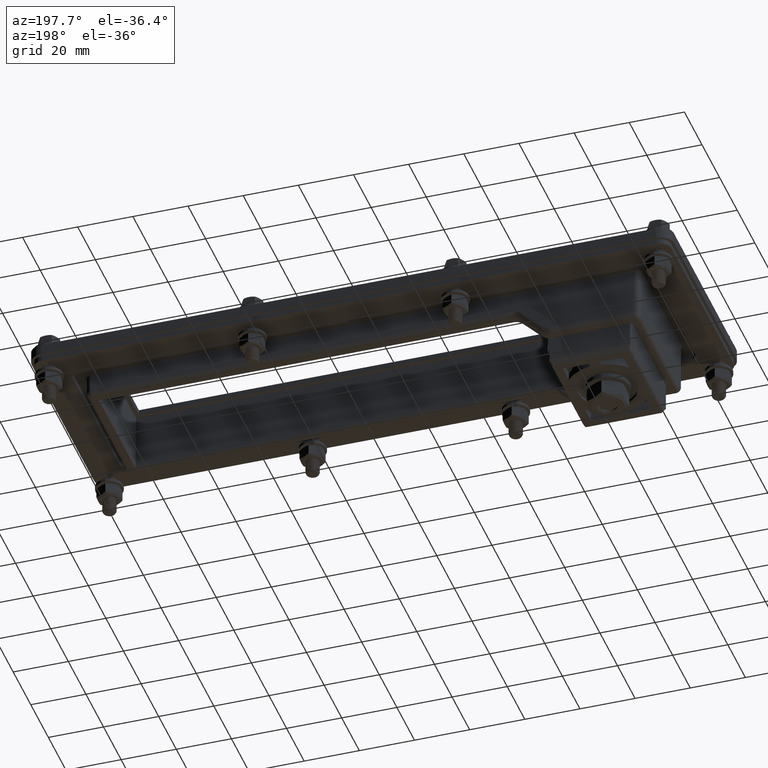
[diagram: clean part render]
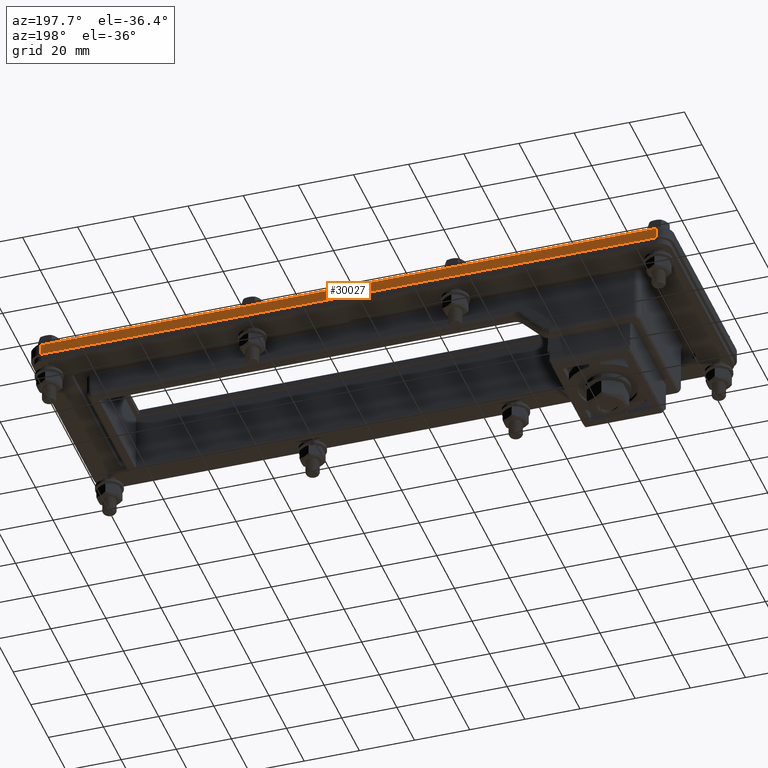
[diagram: same view with one face highlighted and labeled with its STEP entity id]
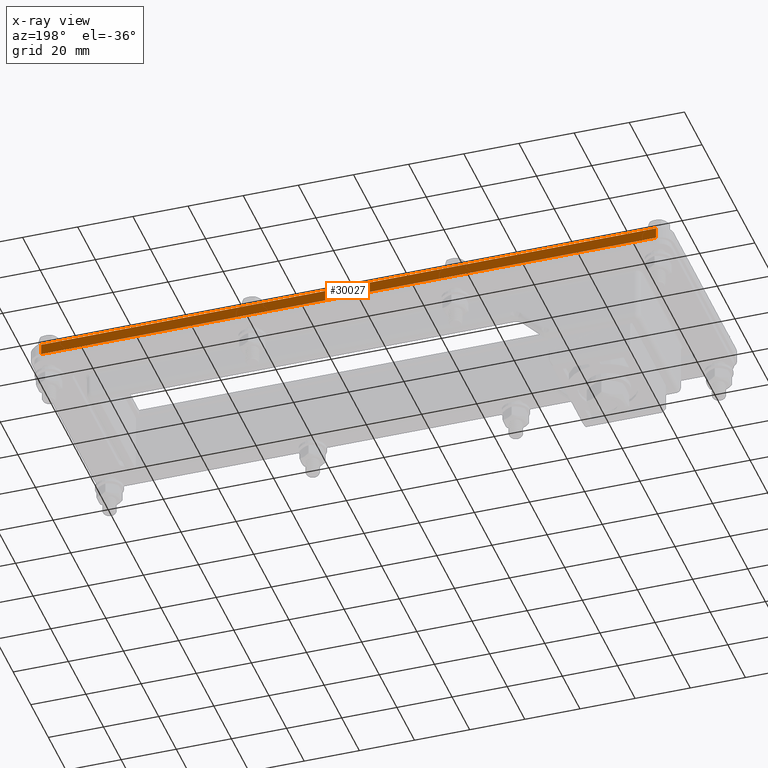
[diagram: x-ray of the same camera — body ghosted, the highlighted face saturated]
A machine part, auxiliary view. The second image highlights one B-rep face of the part: STEP entity #30027.
The next image is the same camera in x-ray: the body ghosted, the highlighted face saturated — about 0% of this face is hidden behind the body in this view.
In plain terms, the highlighted planar face has unit normal (0, 1, 0).
Its self-contained STEP definition (entity closure, byte-faithful):
#8278=CARTESIAN_POINT('',(-111.49999999999994,40.250000000000121,9.500000000000002));
#8279=VERTEX_POINT('',#8278);
#8287=CARTESIAN_POINT('',(111.50000000000017,40.250000000000142,9.500000000000002));
#8288=VERTEX_POINT('',#8287);
#8289=CARTESIAN_POINT('',(111.50000000000017,40.250000000000142,9.500000000000002));
#8290=DIRECTION('',(-1.0,0.0,0.0));
#8291=VECTOR('',#8290,223.00000000000011);
#8292=LINE('',#8289,#8291);
#8293=EDGE_CURVE('',#8288,#8279,#8292,.T.);
#14776=CARTESIAN_POINT('',(111.50000000000017,40.250000000000142,13.5));
#14777=VERTEX_POINT('',#14776);
#14785=CARTESIAN_POINT('',(-111.49999999999994,40.250000000000121,13.5));
#14786=VERTEX_POINT('',#14785);
#14787=CARTESIAN_POINT('',(-111.49999999999994,40.250000000000114,13.5));
#14788=DIRECTION('',(1.0,0.0,0.0));
#14789=VECTOR('',#14788,223.00000000000011);
#14790=LINE('',#14787,#14789);
#14791=EDGE_CURVE('',#14786,#14777,#14790,.T.);
#29696=CARTESIAN_POINT('',(-111.49999999999997,40.250000000000121,13.500000000000002));
#29697=DIRECTION('',(0.0,0.0,-1.0));
#29698=VECTOR('',#29697,4.0);
#29699=LINE('',#29696,#29698);
#29700=EDGE_CURVE('',#14786,#8279,#29699,.T.);
#29718=CARTESIAN_POINT('',(111.50000000000017,40.250000000000142,9.500000000000002));
#29719=DIRECTION('',(0.0,0.0,1.0));
#29720=VECTOR('',#29719,4.0);
#29721=LINE('',#29718,#29720);
#29722=EDGE_CURVE('',#8288,#14777,#29721,.T.);
#30016=CARTESIAN_POINT('',(-116.49999999999997,40.250000000000121,11.500000000000002));
#30017=DIRECTION('',(0.0,1.0,0.0));
#30018=DIRECTION('',(0.0,0.0,1.0));
#30019=AXIS2_PLACEMENT_3D('',#30016,#30017,#30018);
#30020=PLANE('',#30019);
#30021=ORIENTED_EDGE('',*,*,#29700,.F.);
#30022=ORIENTED_EDGE('',*,*,#14791,.T.);
#30023=ORIENTED_EDGE('',*,*,#29722,.F.);
#30024=ORIENTED_EDGE('',*,*,#8293,.T.);
#30025=EDGE_LOOP('',(#30021,#30022,#30023,#30024));
#30026=FACE_OUTER_BOUND('',#30025,.T.);
#30027=ADVANCED_FACE('',(#30026),#30020,.T.);